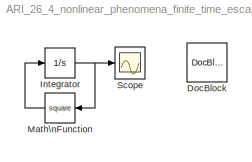
MODEL ARI_26_4_nonlinear_phenomena_finite_time_escape
KIND model
BLOCK [Reference] DocBlock  REF=simulink/Model-Wide\nUtilities/DocBlock
  DocumentType = Text
  Ports = []
  SID = 9
  SourceBlock = simulink/Model-Wide\nUtilities/DocBlock
  SourceType = DocBlock
  UserData = DataTag0
  UserDataPersistent = on
BLOCK [Integrator] Integrator
  InitialCondition = 1
  Ports = [1, 1]
  SID = 1
BLOCK [Math] Math\nFunction
  Operator = square
  Ports = [1, 1]
  SID = 8
BLOCK [Scope] Scope
  DataFormat = StructureWithTime
  Floating = off
  NumInputPorts = 1
  Ports = [1]
  SID = 2
  SampleTime = 0
  TimeRange = 1
  YMin = 0
NET Integrator:1 -> Math\nFunction:1, Scope:1
LINE Math\nFunction:1 -> Integrator:1
note: NET lines group one-source signal fan-out (src -> all destinations, sorted); 1:1 wires keep LINE
